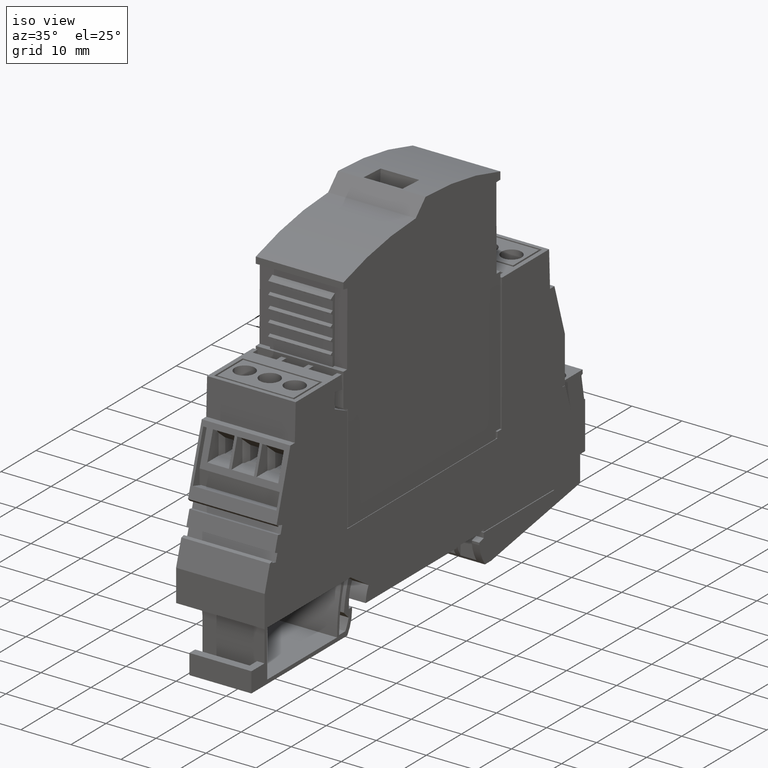
[diagram: clean part render]
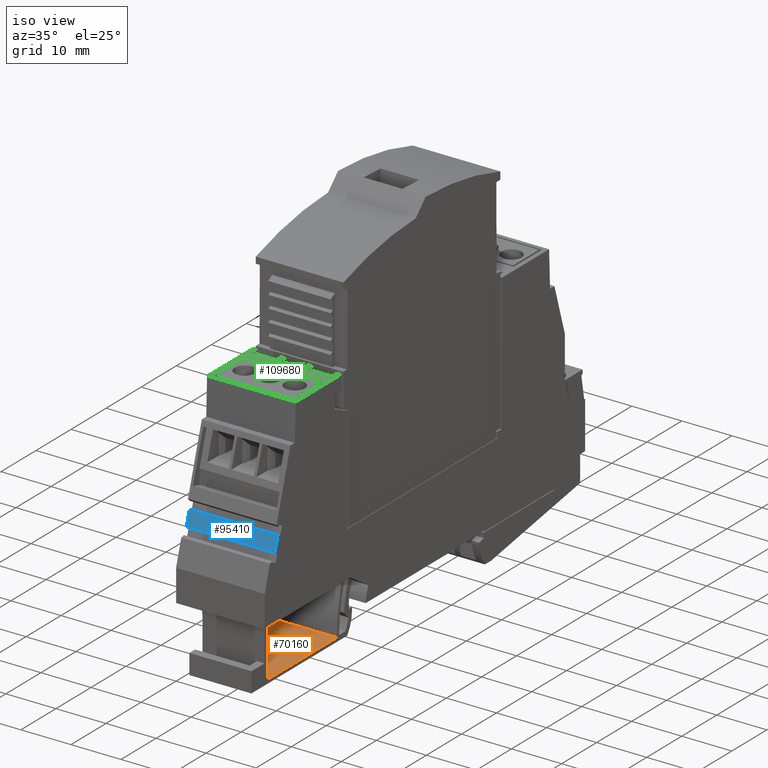
[diagram: same view with three faces highlighted in distinct colors, each labeled with its STEP entity id]
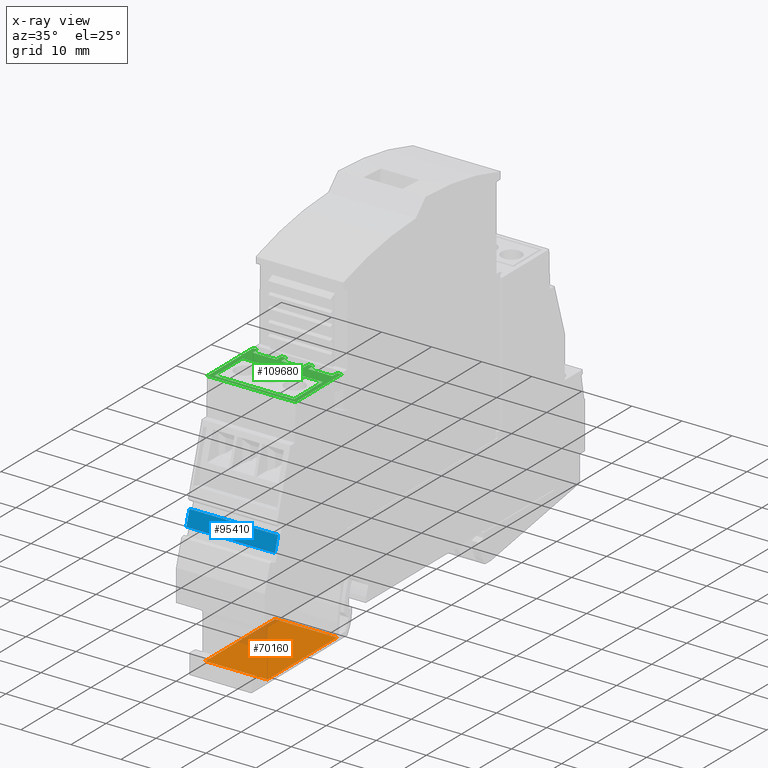
[diagram: x-ray of the same camera — body ghosted, the three highlighted faces saturated]
A machine part, iso view with three faces highlighted in distinct colors.
The next image is the same camera in x-ray (body ghosted, the three faces saturated) — at least one of them is partly hidden behind the body in this view.
Their STEP definitions:

[orange] entity #70160 — the highlighted planar face has unit normal (-0, 0, -1).
#2060=CARTESIAN_POINT('',(109.816655845085,15.9228681969212,
-36.1500000000924));
#2070=VERTEX_POINT('',#2060);
#2100=CARTESIAN_POINT('',(109.816655845085,15.9228681969212,
-41.3000000000924));
#2110=DIRECTION('',(0.,0.,-1.));
#2120=VECTOR('',#2110,1.);
#2130=LINE('',#2100,#2120);
#2140=CARTESIAN_POINT('',(109.816655845085,15.9228681969212,
-48.5500000000924));
#2150=VERTEX_POINT('',#2140);
#2160=EDGE_CURVE('',#2070,#2150,#2130,.T.);
#11170=CARTESIAN_POINT('',(89.9260566836108,15.9228681989067,
-36.1500000000924));
#11180=VERTEX_POINT('',#11170);
#11210=CARTESIAN_POINT('',(89.4629890273286,15.922868198953,
-36.1500000000924));
#11220=DIRECTION('',(-1.,9.98220044492494E-11,0.));
#11230=VECTOR('',#11220,1.);
#11240=LINE('',#11210,#11230);
#11250=EDGE_CURVE('',#2070,#11180,#11240,.T.);
#64040=CARTESIAN_POINT('',(89.4629890273286,15.922868198953,
-48.5500000000924));
#64050=DIRECTION('',(-1.,9.98220044492494E-11,0.));
#64060=VECTOR('',#64050,1.);
#64070=LINE('',#64040,#64060);
#64080=CARTESIAN_POINT('',(89.9260566836108,15.9228681989067,
-48.5500000000924));
#64090=VERTEX_POINT('',#64080);
#64100=EDGE_CURVE('',#2150,#64090,#64070,.T.);
#70000=CARTESIAN_POINT('',(90.9109439588241,15.9228681988084,
-36.1500000000924));
#70010=DIRECTION('',(-9.98220044492494E-11,-1.,-0.));
#70020=DIRECTION('',(-1.,9.98220044492494E-11,0.));
#70030=AXIS2_PLACEMENT_3D('',#70000,#70010,#70020);
#70040=PLANE('',#70030);
#70050=ORIENTED_EDGE('',*,*,#11250,.F.);
#70060=CARTESIAN_POINT('',(89.9260566836108,15.9228681989068,
-36.1500000000924));
#70070=DIRECTION('',(0.,0.,-1.));
#70080=VECTOR('',#70070,1.);
#70090=LINE('',#70060,#70080);
#70100=EDGE_CURVE('',#11180,#64090,#70090,.T.);
#70110=ORIENTED_EDGE('',*,*,#70100,.F.);
#70120=ORIENTED_EDGE('',*,*,#64100,.T.);
#70130=ORIENTED_EDGE('',*,*,#2160,.T.);
#70140=EDGE_LOOP('',(#70130,#70120,#70110,#70050));
#70150=FACE_OUTER_BOUND('',#70140,.T.);
#70160=ADVANCED_FACE('',(#70150),#70040,.F.);

[blue] entity #95410 — the highlighted planar face has unit normal (-0, 0.9563, -0.2924).
#72390=CARTESIAN_POINT('',(110.538041410446,42.991346614902,
-33.5000000000924));
#72400=VERTEX_POINT('',#72390);
#72430=CARTESIAN_POINT('',(116.198257089175,24.4776153409428,
-33.5000000000924));
#72440=DIRECTION('',(-0.292371704722703,0.956304755963046,0.));
#72450=VECTOR('',#72440,1.);
#72460=LINE('',#72430,#72450);
#72470=CARTESIAN_POINT('',(111.418811170923,40.1104785375634,
-33.5000000000924));
#72480=VERTEX_POINT('',#72470);
#72490=EDGE_CURVE('',#72480,#72400,#72460,.T.);
#89420=CARTESIAN_POINT('',(111.418811170923,40.1104785375634,
-51.2000000000924));
#89430=VERTEX_POINT('',#89420);
#89460=CARTESIAN_POINT('',(116.198257089175,24.4776153409428,
-51.2000000000924));
#89470=DIRECTION('',(-0.292371704722703,0.956304755963046,0.));
#89480=VECTOR('',#89470,1.);
#89490=LINE('',#89460,#89480);
#89500=CARTESIAN_POINT('',(110.538041410446,42.991346614902,
-51.2000000000924));
#89510=VERTEX_POINT('',#89500);
#89520=EDGE_CURVE('',#89430,#89510,#89490,.T.);
#95200=CARTESIAN_POINT('',(110.564832341189,42.9037174289271,
-33.5000000000924));
#95210=DIRECTION('',(-0.956304755963046,-0.292371704722703,-0.));
#95220=DIRECTION('',(-0.292371704722703,0.956304755963046,0.));
#95230=AXIS2_PLACEMENT_3D('',#95200,#95210,#95220);
#95240=PLANE('',#95230);
#95250=ORIENTED_EDGE('',*,*,#72490,.F.);
#95260=CARTESIAN_POINT('',(110.538041410446,42.991346614902,
-41.3000000000924));
#95270=DIRECTION('',(0.,0.,1.));
#95280=VECTOR('',#95270,1.);
#95290=LINE('',#95260,#95280);
#95300=EDGE_CURVE('',#89510,#72400,#95290,.T.);
#95310=ORIENTED_EDGE('',*,*,#95300,.T.);
#95320=ORIENTED_EDGE('',*,*,#89520,.T.);
#95330=CARTESIAN_POINT('',(111.418811170923,40.1104785375634,
-41.3000000000924));
#95340=DIRECTION('',(0.,0.,1.));
#95350=VECTOR('',#95340,1.);
#95360=LINE('',#95330,#95350);
#95370=EDGE_CURVE('',#89430,#72480,#95360,.T.);
#95380=ORIENTED_EDGE('',*,*,#95370,.F.);
#95390=EDGE_LOOP('',(#95380,#95320,#95310,#95250));
#95400=FACE_OUTER_BOUND('',#95390,.T.);
#95410=ADVANCED_FACE('',(#95400),#95240,.F.);

[green] entity #109680 — the highlighted planar face has unit normal (-0, 0, -1).
#18150=CARTESIAN_POINT('',(93.7824928721984,65.0562740524421,
-50.3000000000924));
#18160=VERTEX_POINT('',#18150);
#18190=CARTESIAN_POINT('',(93.7824928721984,65.0562740524421,
-41.3000000000924));
#18200=DIRECTION('',(0.,0.,-1.));
#18210=VECTOR('',#18200,1.);
#18220=LINE('',#18190,#18210);
#18230=CARTESIAN_POINT('',(93.7824928721984,65.0562740524421,
-45.5500000000924));
#18240=VERTEX_POINT('',#18230);
#18250=EDGE_CURVE('',#18240,#18160,#18220,.T.);
#70310=CARTESIAN_POINT('',(89.46333,65.0562740524421,-45.5500000000924))
;
#70320=DIRECTION('',(-1.,0.,0.));
#70330=VECTOR('',#70320,1.);
#70340=LINE('',#70310,#70330);
#70350=CARTESIAN_POINT('',(92.3744604058031,65.0562740524421,
-45.5500000000924));
#70360=VERTEX_POINT('',#70350);
#70370=EDGE_CURVE('',#18240,#70360,#70340,.T.);
#72110=CARTESIAN_POINT('',(92.3744604058031,65.0562740524422,
-33.5000000000924));
#72120=VERTEX_POINT('',#72110);
#72150=CARTESIAN_POINT('',(101.563282627831,65.0562740524421,
-33.5000000000924));
#72160=DIRECTION('',(-1.,0.,0.));
#72170=VECTOR('',#72160,1.);
#72180=LINE('',#72150,#72170);
#72190=CARTESIAN_POINT('',(105.491351299417,65.0562740524421,
-33.5000000000924));
#72200=VERTEX_POINT('',#72190);
#72210=EDGE_CURVE('',#72200,#72120,#72180,.T.);
#76150=CARTESIAN_POINT('',(104.707541829374,65.0562740524421,
-34.3749999725308));
#76160=VERTEX_POINT('',#76150);
#76330=CARTESIAN_POINT('',(104.707541829374,65.0562740524421,
-50.325000027654));
#76340=VERTEX_POINT('',#76330);
#76370=CARTESIAN_POINT('',(104.707541829374,65.0562740524421,
-41.3000000000924));
#76380=DIRECTION('',(0.,0.,-1.));
#76390=VECTOR('',#76380,1.);
#76400=LINE('',#76370,#76390);
#76410=EDGE_CURVE('',#76160,#76340,#76400,.T.);
#79100=CARTESIAN_POINT('',(96.5839924046372,65.0562740524421,
-50.325000027654));
#79110=VERTEX_POINT('',#79100);
#79140=CARTESIAN_POINT('',(89.46333,65.0562740524421,-50.325000027654));
#79150=DIRECTION('',(-1.,0.,0.));
#79160=VECTOR('',#79150,1.);
#79170=LINE('',#79140,#79160);
#79180=EDGE_CURVE('',#76340,#79110,#79170,.T.);
#86390=CARTESIAN_POINT('',(105.491351299417,65.0562740524421,
-41.3000000000924));
#86400=DIRECTION('',(0.,0.,1.));
#86410=VECTOR('',#86400,1.);
#86420=LINE('',#86390,#86410);
#86430=CARTESIAN_POINT('',(105.491351299417,65.0562740524421,
-51.2000000000924));
#86440=VERTEX_POINT('',#86430);
#86450=EDGE_CURVE('',#86440,#72200,#86420,.T.);
#89670=CARTESIAN_POINT('',(101.563282627831,65.0562740524421,
-51.2000000000924));
#89680=DIRECTION('',(-1.,0.,0.));
#89690=VECTOR('',#89680,1.);
#89700=LINE('',#89670,#89690);
#89710=CARTESIAN_POINT('',(92.3744604058031,65.0562740524422,
-51.2000000000924));
#89720=VERTEX_POINT('',#89710);
#89730=EDGE_CURVE('',#86440,#89720,#89700,.T.);
#108540=CARTESIAN_POINT('',(93.3234249727928,65.0562740524421,
-33.5000000000924));
#108550=DIRECTION('',(-0.,-1.,-0.));
#108560=DIRECTION('',(-1.,0.,0.));
#108570=AXIS2_PLACEMENT_3D('',#108540,#108550,#108560);
#108580=PLANE('',#108570);
#108590=ORIENTED_EDGE('',*,*,#79180,.F.);
#108600=CARTESIAN_POINT('',(96.5839924046372,65.0562740524421,
-41.3000000000924));
#108610=DIRECTION('',(0.,0.,1.));
#108620=VECTOR('',#108610,1.);
#108630=LINE('',#108600,#108620);
#108640=CARTESIAN_POINT('',(96.5839924046372,65.0562740524421,
-34.3749999725308));
#108650=VERTEX_POINT('',#108640);
#108660=EDGE_CURVE('',#79110,#108650,#108630,.T.);
#108670=ORIENTED_EDGE('',*,*,#108660,.F.);
#108680=CARTESIAN_POINT('',(89.46333,65.0562740524421,-34.3749999725308)
);
#108690=DIRECTION('',(1.,0.,0.));
#108700=VECTOR('',#108690,1.);
#108710=LINE('',#108680,#108700);
#108720=EDGE_CURVE('',#108650,#76160,#108710,.T.);
#108730=ORIENTED_EDGE('',*,*,#108720,.F.);
#108740=ORIENTED_EDGE('',*,*,#76410,.F.);
#108750=EDGE_LOOP('',(#108740,#108730,#108670,#108590));
#108760=FACE_BOUND('',#108750,.T.);
#108770=ORIENTED_EDGE('',*,*,#72210,.F.);
#108780=CARTESIAN_POINT('',(92.3744604058031,65.0562740524421,
-41.3000000000924));
#108790=DIRECTION('',(0.,0.,1.));
#108800=VECTOR('',#108790,1.);
#108810=LINE('',#108780,#108800);
#108820=CARTESIAN_POINT('',(92.3744604058031,65.0562740524421,
-34.4000000000924));
#108830=VERTEX_POINT('',#108820);
#108840=EDGE_CURVE('',#108830,#72120,#108810,.T.);
#108850=ORIENTED_EDGE('',*,*,#108840,.T.);
#108860=CARTESIAN_POINT('',(89.46333,65.0562740524421,-34.4000000000924)
);
#108870=DIRECTION('',(-1.,0.,0.));
#108880=VECTOR('',#108870,1.);
#108890=LINE('',#108860,#108880);
#108900=CARTESIAN_POINT('',(93.7824928721984,65.0562740524421,
-34.4000000000924));
#108910=VERTEX_POINT('',#108900);
#108920=EDGE_CURVE('',#108910,#108830,#108890,.T.);
#108930=ORIENTED_EDGE('',*,*,#108920,.T.);
#108940=CARTESIAN_POINT('',(93.7824928721984,65.0562740524421,
-41.3000000000924));
#108950=DIRECTION('',(0.,0.,-1.));
#108960=VECTOR('',#108950,1.);
#108970=LINE('',#108940,#108960);
#108980=CARTESIAN_POINT('',(93.7824928721984,65.0562740524421,
-39.1500000000924));
#108990=VERTEX_POINT('',#108980);
#109000=EDGE_CURVE('',#108910,#108990,#108970,.T.);
#109010=ORIENTED_EDGE('',*,*,#109000,.F.);
#109020=CARTESIAN_POINT('',(89.46333,65.0562740524421,-39.1500000000924)
);
#109030=DIRECTION('',(-1.,0.,0.));
#109040=VECTOR('',#109030,1.);
#109050=LINE('',#109020,#109040);
#109060=CARTESIAN_POINT('',(92.3744604058031,65.0562740524421,
-39.1500000000924));
#109070=VERTEX_POINT('',#109060);
#109080=EDGE_CURVE('',#108990,#109070,#109050,.T.);
#109090=ORIENTED_EDGE('',*,*,#109080,.F.);
#109100=CARTESIAN_POINT('',(92.3744604058031,65.0562740524421,
-41.3000000000924));
#109110=DIRECTION('',(0.,0.,1.));
#109120=VECTOR('',#109110,1.);
#109130=LINE('',#109100,#109120);
#109140=CARTESIAN_POINT('',(92.3744604058031,65.0562740524421,
-40.1500000000924));
#109150=VERTEX_POINT('',#109140);
#109160=EDGE_CURVE('',#109150,#109070,#109130,.T.);
#109170=ORIENTED_EDGE('',*,*,#109160,.T.);
#109180=CARTESIAN_POINT('',(89.46333,65.0562740524421,-40.1500000000924)
);
#109190=DIRECTION('',(-1.,0.,0.));
#109200=VECTOR('',#109190,1.);
#109210=LINE('',#109180,#109200);
#109220=CARTESIAN_POINT('',(93.7824928721984,65.0562740524421,
-40.1500000000924));
#109230=VERTEX_POINT('',#109220);
#109240=EDGE_CURVE('',#109230,#109150,#109210,.T.);
#109250=ORIENTED_EDGE('',*,*,#109240,.T.);
#109260=CARTESIAN_POINT('',(93.7824928721984,65.0562740524421,
-41.3000000000924));
#109270=DIRECTION('',(0.,0.,-1.));
#109280=VECTOR('',#109270,1.);
#109290=LINE('',#109260,#109280);
#109300=CARTESIAN_POINT('',(93.7824928721984,65.0562740524421,
-44.5500000000924));
#109310=VERTEX_POINT('',#109300);
#109320=EDGE_CURVE('',#109230,#109310,#109290,.T.);
#109330=ORIENTED_EDGE('',*,*,#109320,.F.);
#109340=CARTESIAN_POINT('',(89.46333,65.0562740524421,-44.5500000000924)
);
#109350=DIRECTION('',(-1.,0.,0.));
#109360=VECTOR('',#109350,1.);
#109370=LINE('',#109340,#109360);
#109380=CARTESIAN_POINT('',(92.3744604058031,65.0562740524421,
-44.5500000000924));
#109390=VERTEX_POINT('',#109380);
#109400=EDGE_CURVE('',#109310,#109390,#109370,.T.);
#109410=ORIENTED_EDGE('',*,*,#109400,.F.);
#109420=CARTESIAN_POINT('',(92.3744604058031,65.0562740524421,
-41.3000000000924));
#109430=DIRECTION('',(0.,0.,1.));
#109440=VECTOR('',#109430,1.);
#109450=LINE('',#109420,#109440);
#109460=EDGE_CURVE('',#70360,#109390,#109450,.T.);
#109470=ORIENTED_EDGE('',*,*,#109460,.T.);
#109480=ORIENTED_EDGE('',*,*,#70370,.T.);
#109490=ORIENTED_EDGE('',*,*,#18250,.F.);
#109500=CARTESIAN_POINT('',(89.46333,65.0562740524421,-50.3000000000924)
);
#109510=DIRECTION('',(-1.,0.,0.));
#109520=VECTOR('',#109510,1.);
#109530=LINE('',#109500,#109520);
#109540=CARTESIAN_POINT('',(92.3744604058031,65.0562740524421,
-50.3000000000924));
#109550=VERTEX_POINT('',#109540);
#109560=EDGE_CURVE('',#18160,#109550,#109530,.T.);
#109570=ORIENTED_EDGE('',*,*,#109560,.F.);
#109580=CARTESIAN_POINT('',(92.3744604058031,65.0562740524421,
-41.3000000000924));
#109590=DIRECTION('',(0.,0.,1.));
#109600=VECTOR('',#109590,1.);
#109610=LINE('',#109580,#109600);
#109620=EDGE_CURVE('',#89720,#109550,#109610,.T.);
#109630=ORIENTED_EDGE('',*,*,#109620,.T.);
#109640=ORIENTED_EDGE('',*,*,#89730,.T.);
#109650=ORIENTED_EDGE('',*,*,#86450,.F.);
#109660=EDGE_LOOP('',(#109650,#109640,#109630,#109570,#109490,#109480,
#109470,#109410,#109330,#109250,#109170,#109090,#109010,#108930,#108850,
#108770));
#109670=FACE_OUTER_BOUND('',#109660,.T.);
#109680=ADVANCED_FACE('',(#108760,#109670),#108580,.F.);